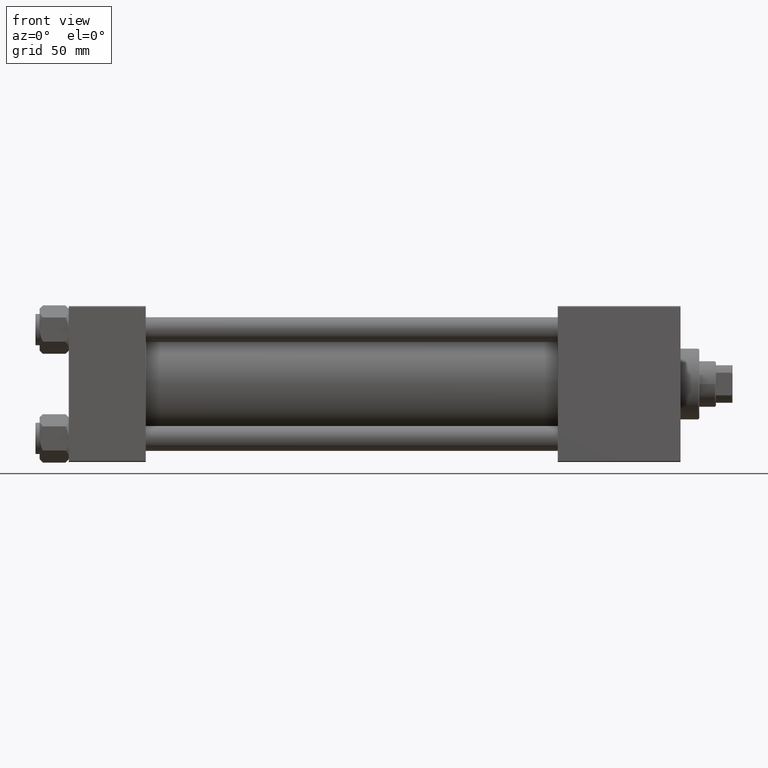
[diagram: clean part render]
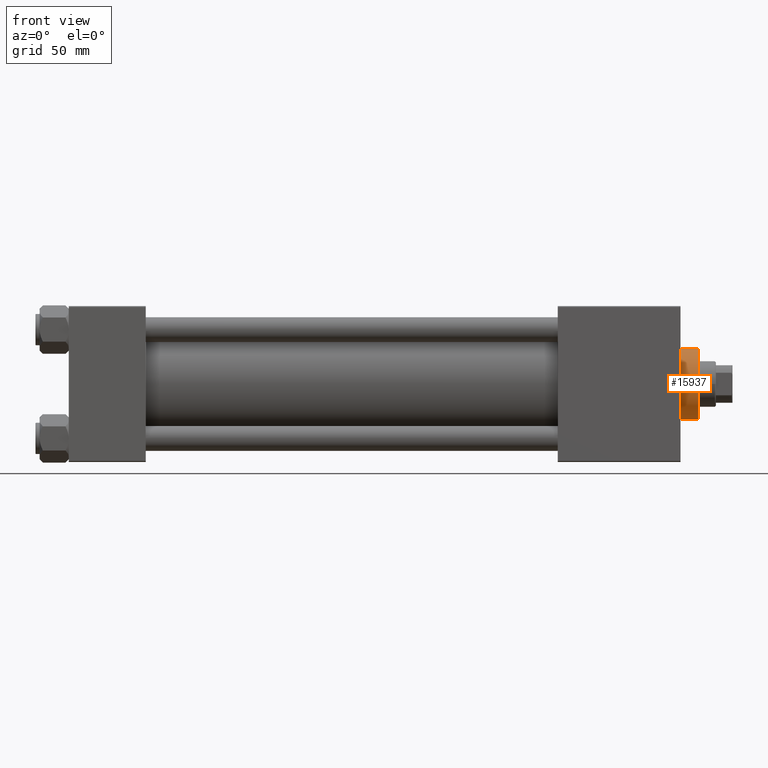
[diagram: same view with one face highlighted and labeled with its STEP entity id]
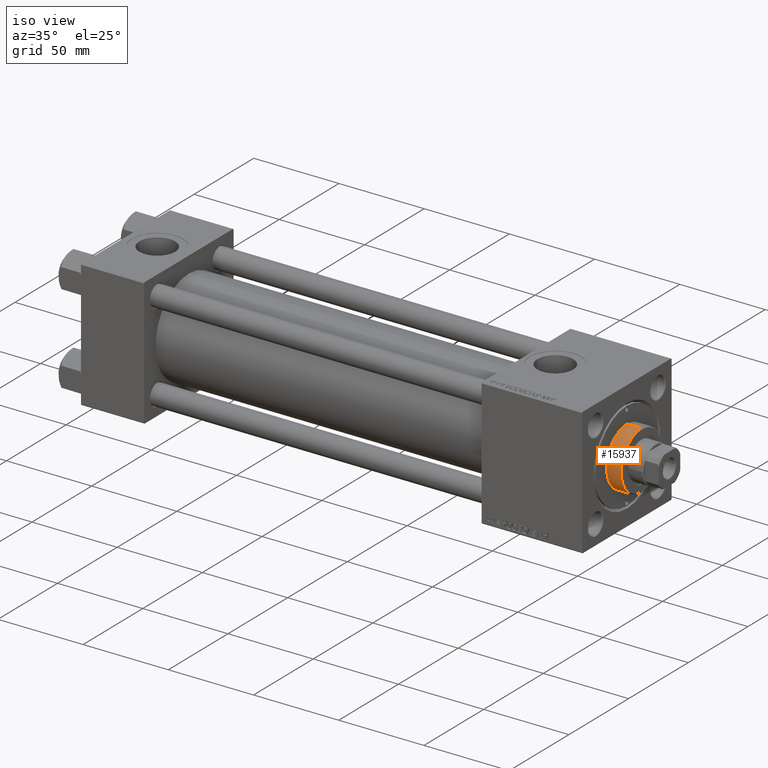
[diagram: same view with one face highlighted and labeled with its STEP entity id]
A machine part, front view. The second image highlights one B-rep face of the part: STEP entity #15937.
A second angle (iso view) of the same face is appended — the face is thin or edge-on in the first view.
In plain terms, the highlighted cylindrical surface (edge-blend (fillet) strip) has radius 17 mm, axis along (-1, -0, -0).
Its self-contained STEP definition (entity closure, byte-faithful):
#178 = CARTESIAN_POINT ( 'NONE',  ( 17.00000000000000000, 2.081899558550500280E-15, 37.69999999999999574 ) ) ;
#877 = DIRECTION ( 'NONE',  ( 1.000000000000000000, 0.000000000000000000, 0.000000000000000000 ) ) ;
#1180 = LINE ( 'NONE', #178, #29573 ) ;
#1567 = LINE ( 'NONE', #44852, #44906 ) ;
#2435 = DIRECTION ( 'NONE',  ( 1.000000000000000000, 0.000000000000000000, 0.000000000000000000 ) ) ;
#5092 = EDGE_CURVE ( 'NONE', #36497, #19408, #34068, .T. ) ;
#9604 = AXIS2_PLACEMENT_3D ( 'NONE', #44711, #21812, #2435 ) ;
#10922 = CARTESIAN_POINT ( 'NONE',  ( 0.000000000000000000, 0.000000000000000000, 37.69999999999999574 ) ) ;
#13687 = CIRCLE ( 'NONE', #9604, 17.00000000000000000 ) ;
#13759 = VERTEX_POINT ( 'NONE', #49397 ) ;
#14742 = FACE_OUTER_BOUND ( 'NONE', #28729, .T. ) ;
#15937 = ADVANCED_FACE ( 'NONE', ( #14742 ), #45796, .T. ) ;
#17871 = EDGE_CURVE ( 'NONE', #13759, #36497, #1567, .T. ) ;
#19408 = VERTEX_POINT ( 'NONE', #22982 ) ;
#19806 = ORIENTED_EDGE ( 'NONE', *, *, #17871, .T. ) ;
#21701 = DIRECTION ( 'NONE',  ( -0.000000000000000000, -0.000000000000000000, -1.000000000000000000 ) ) ;
#21812 = DIRECTION ( 'NONE',  ( 0.000000000000000000, 0.000000000000000000, -1.000000000000000000 ) ) ;
#22982 = CARTESIAN_POINT ( 'NONE',  ( 17.00000000000000000, 2.081899558550500280E-15, 28.69999999999999929 ) ) ;
#26451 = DIRECTION ( 'NONE',  ( -1.000000000000000000, 0.000000000000000000, 0.000000000000000000 ) ) ;
#27557 = AXIS2_PLACEMENT_3D ( 'NONE', #47974, #44150, #877 ) ;
#28729 = EDGE_LOOP ( 'NONE', ( #31482, #47994, #19806, #40190 ) ) ;
#29573 = VECTOR ( 'NONE', #39901, 1000.000000000000000 ) ;
#31482 = ORIENTED_EDGE ( 'NONE', *, *, #33999, .F. ) ;
#33483 = VERTEX_POINT ( 'NONE', #45341 ) ;
#33999 = EDGE_CURVE ( 'NONE', #33483, #19408, #1180, .T. ) ;
#34007 = CARTESIAN_POINT ( 'NONE',  ( -17.00000000000000000, 0.000000000000000000, 28.69999999999999929 ) ) ;
#34068 = CIRCLE ( 'NONE', #27557, 17.00000000000000000 ) ;
#36497 = VERTEX_POINT ( 'NONE', #34007 ) ;
#36738 = AXIS2_PLACEMENT_3D ( 'NONE', #10922, #41720, #26451 ) ;
#39901 = DIRECTION ( 'NONE',  ( -0.000000000000000000, -0.000000000000000000, -1.000000000000000000 ) ) ;
#40190 = ORIENTED_EDGE ( 'NONE', *, *, #5092, .T. ) ;
#41720 = DIRECTION ( 'NONE',  ( -0.000000000000000000, -0.000000000000000000, -1.000000000000000000 ) ) ;
#44150 = DIRECTION ( 'NONE',  ( 0.000000000000000000, 0.000000000000000000, 1.000000000000000000 ) ) ;
#44711 = CARTESIAN_POINT ( 'NONE',  ( 0.000000000000000000, 0.000000000000000000, 37.19999999999999574 ) ) ;
#44852 = CARTESIAN_POINT ( 'NONE',  ( -17.00000000000000000, 0.000000000000000000, 37.69999999999999574 ) ) ;
#44906 = VECTOR ( 'NONE', #21701, 1000.000000000000000 ) ;
#45341 = CARTESIAN_POINT ( 'NONE',  ( 17.00000000000000000, 2.081899558550500280E-15, 37.19999999999999574 ) ) ;
#45796 = CYLINDRICAL_SURFACE ( 'NONE', #36738, 17.00000000000000000 ) ;
#47974 = CARTESIAN_POINT ( 'NONE',  ( 0.000000000000000000, 0.000000000000000000, 28.69999999999999929 ) ) ;
#47994 = ORIENTED_EDGE ( 'NONE', *, *, #48235, .T. ) ;
#48235 = EDGE_CURVE ( 'NONE', #33483, #13759, #13687, .T. ) ;
#49397 = CARTESIAN_POINT ( 'NONE',  ( -17.00000000000000000, 0.000000000000000000, 37.19999999999999574 ) ) ;